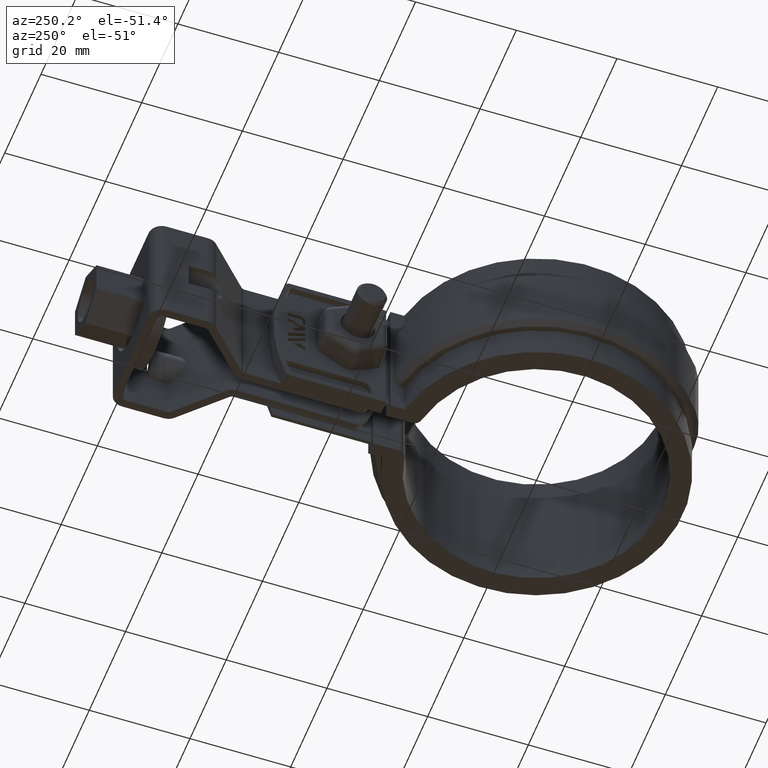
[diagram: clean part render]
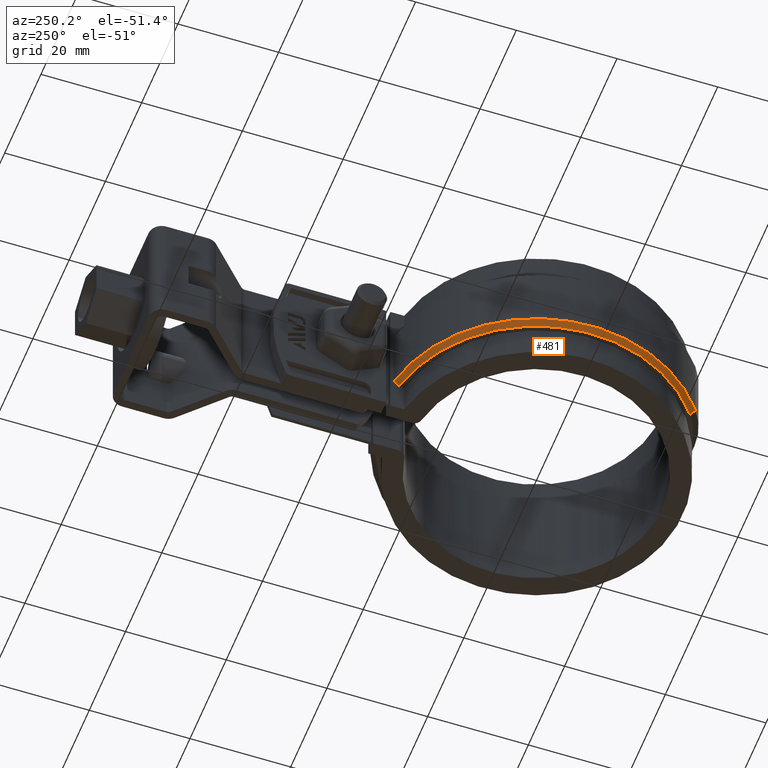
[diagram: same view with one face highlighted and labeled with its STEP entity id]
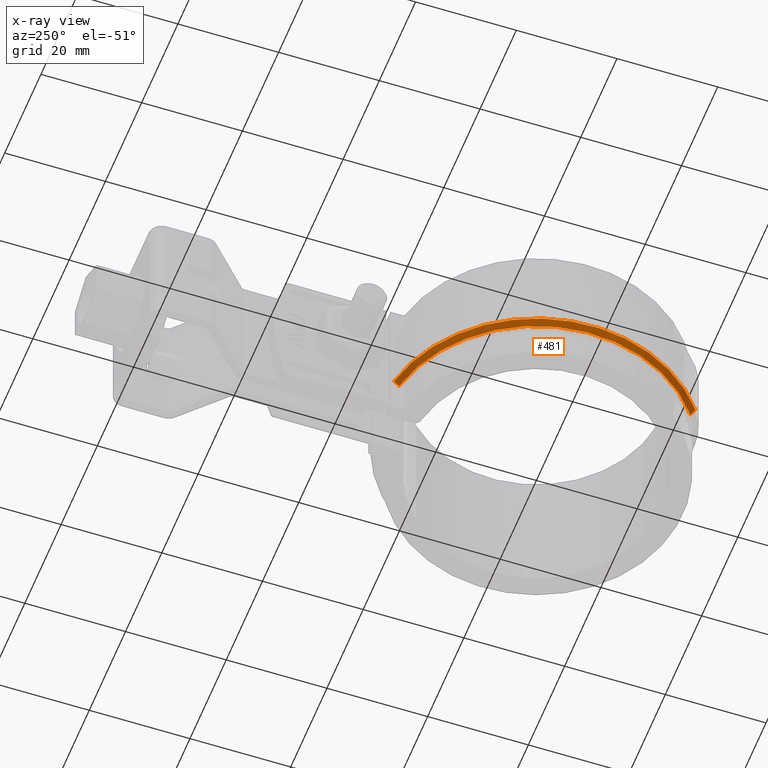
[diagram: x-ray of the same camera — body ghosted, the highlighted face saturated]
A machine part, auxiliary view. The second image highlights one B-rep face of the part: STEP entity #481.
The next image is the same camera in x-ray: the body ghosted, the highlighted face saturated — about 0% of this face is hidden behind the body in this view.
In plain terms, the highlighted conical surface has half-angle 45 deg.
Its self-contained STEP definition (entity closure, byte-faithful):
#481 = ADVANCED_FACE( '', ( #956 ), #957, .T. );
#956 = FACE_OUTER_BOUND( '', #2274, .T. );
#957 = CONICAL_SURFACE( '', #2275, 31.0950000000000, 0.785398163397447 );
#2274 = EDGE_LOOP( '', ( #4815, #4816, #4817, #4818 ) );
#2275 = AXIS2_PLACEMENT_3D( '', #4819, #4820, #4821 );
#4815 = ORIENTED_EDGE( '', *, *, #7318, .F. );
#4816 = ORIENTED_EDGE( '', *, *, #7345, .F. );
#4817 = ORIENTED_EDGE( '', *, *, #7364, .F. );
#4818 = ORIENTED_EDGE( '', *, *, #7339, .F. );
#4819 = CARTESIAN_POINT( '', ( 0.000000000000000, 0.000000000000000, -19.0000000000000 ) );
#4820 = DIRECTION( '', ( 0.000000000000000, 0.000000000000000, 1.00000000000000 ) );
#4821 = DIRECTION( '', ( 1.00000000000000, 0.000000000000000, 0.000000000000000 ) );
#7318 = EDGE_CURVE( '', #8531, #8533, #8534, .T. );
#7339 = EDGE_CURVE( '', #8533, #8569, #8570, .F. );
#7345 = EDGE_CURVE( '', #8576, #8531, #8578, .T. );
#7364 = EDGE_CURVE( '', #8569, #8576, #8604, .T. );
#8531 = VERTEX_POINT( '', #12061 );
#8533 = VERTEX_POINT( '', #12064 );
#8534 = B_SPLINE_CURVE_WITH_KNOTS( '', 3, ( #12065, #12066, #12067, #12068 ), .UNSPECIFIED., .F., .F., ( 4, 4 ), ( 0.000000000000000, 0.00142877906291673 ), .UNSPECIFIED. );
#8569 = VERTEX_POINT( '', #12126 );
#8570 = CIRCLE( '', #12127, 31.0950000000000 );
#8576 = VERTEX_POINT( '', #12134 );
#8578 = CIRCLE( '', #12136, 30.0950000000000 );
#8604 = LINE( '', #12170, #12171 );
#12061 = CARTESIAN_POINT( '', ( -6.09999999999999, 29.4703075145137, -20.0000000000000 ) );
#12064 = CARTESIAN_POINT( '', ( -6.09999999999999, 30.4908023016778, -19.0000000000000 ) );
#12065 = CARTESIAN_POINT( '', ( -6.09999999999999, 29.4703075145137, -20.0000000000000 ) );
#12066 = CARTESIAN_POINT( '', ( -6.09999999999999, 29.8105871020806, -19.6667837153511 ) );
#12067 = CARTESIAN_POINT( '', ( -6.10000000000000, 30.1507483085061, -19.3334465051517 ) );
#12068 = CARTESIAN_POINT( '', ( -6.10000000000000, 30.4908023016778, -19.0000000000000 ) );
#12126 = CARTESIAN_POINT( '', ( -18.6948570380802, -24.8475621606173, -19.0000000000000 ) );
#12127 = AXIS2_PLACEMENT_3D( '', #14084, #14085, #14086 );
#12134 = CARTESIAN_POINT( '', ( -18.0936395742410, -24.0484767076308, -20.0000000000000 ) );
#12136 = AXIS2_PLACEMENT_3D( '', #14100, #14101, #14102 );
#12170 = CARTESIAN_POINT( '', ( -18.6948570380802, -24.8475621606173, -19.0000000000000 ) );
#12171 = VECTOR( '', #14141, 1000.00000000000 );
#14084 = CARTESIAN_POINT( '', ( 0.000000000000000, 0.000000000000000, -19.0000000000000 ) );
#14085 = DIRECTION( '', ( 0.000000000000000, 0.000000000000000, -1.00000000000000 ) );
#14086 = DIRECTION( '', ( -1.00000000000000, 0.000000000000000, 0.000000000000000 ) );
#14100 = CARTESIAN_POINT( '', ( 0.000000000000000, 0.000000000000000, -20.0000000000000 ) );
#14101 = DIRECTION( '', ( 0.000000000000000, 0.000000000000000, -1.00000000000000 ) );
#14102 = DIRECTION( '', ( -1.00000000000000, 0.000000000000000, 0.000000000000000 ) );
#14141 = DIRECTION( '', ( 0.425124945648482, 0.565038742554326, -0.707106781186549 ) );